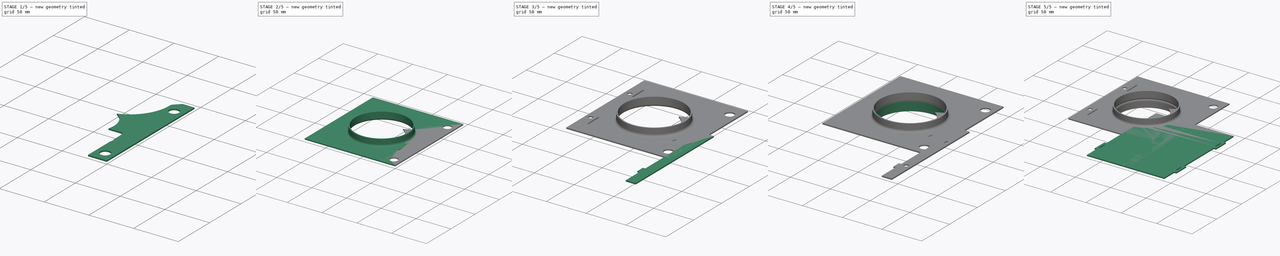
[diagram: build sequence overview — one tinted view per stage of 5, left to right]
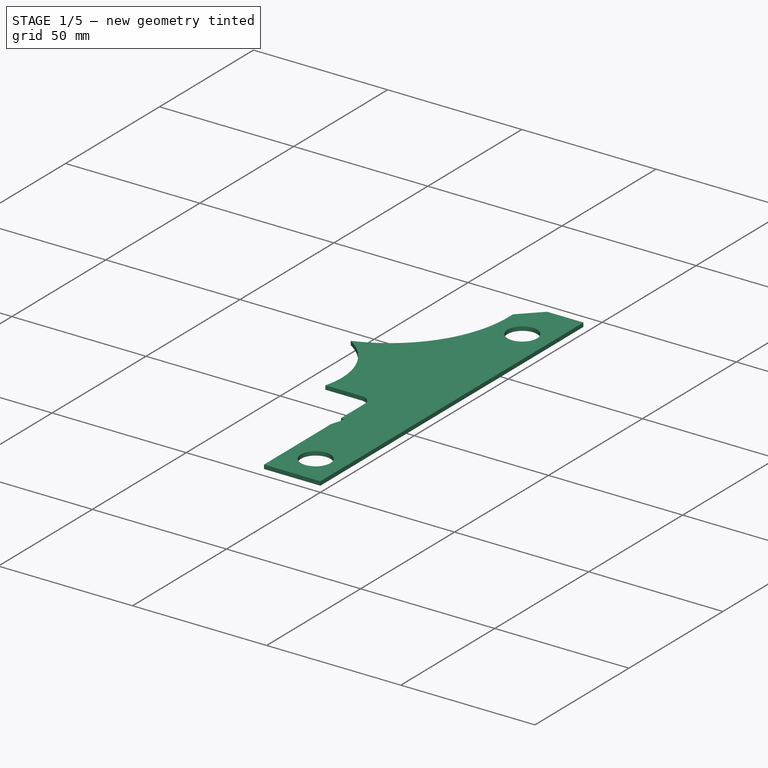
[diagram: stage 1 of 5 — iso view after this stage's code; geometry added in this stage tinted green]
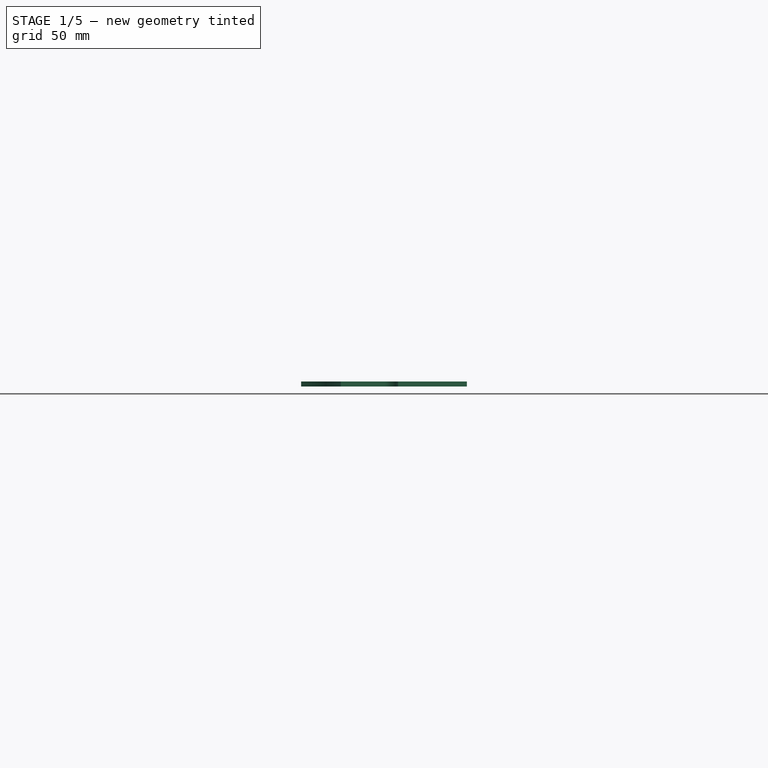
[diagram: stage 1 of 5 — front view after this stage's code; geometry added in this stage tinted green]
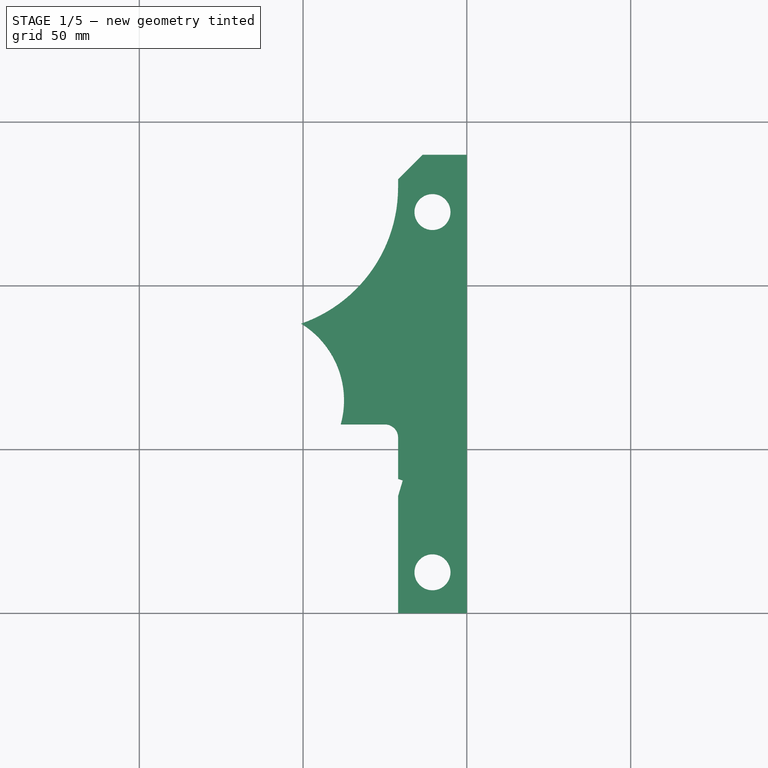
[diagram: stage 1 of 5 — top view after this stage's code; geometry added in this stage tinted green]
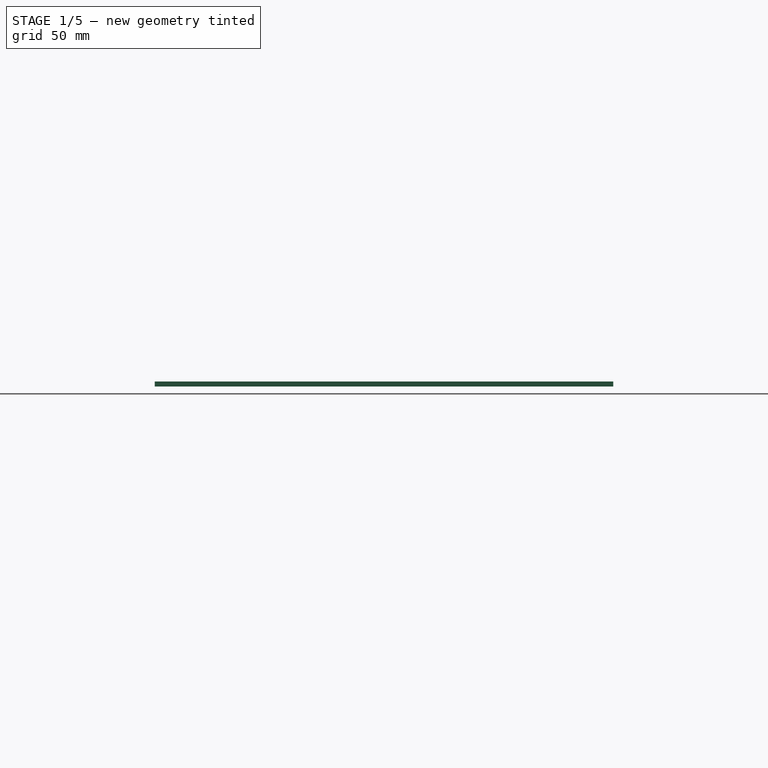
[diagram: stage 1 of 5 — right view after this stage's code; geometry added in this stage tinted green]
FCSTD DOCUMENT  (FreeCAD 0.19R)
Label: recicladora_piezas_fijas
License: Creative Commons Attribution-ShareAlike
LicenseURL: http://creativecommons.org/licenses/by-sa/4.0/
objects: PartDesign::CoordinateSystem×14, Sketcher::SketchObject×13, PartDesign::Pad×8, PartDesign::Body×6, PartDesign::Fillet×4, PartDesign::Hole×3, PartDesign::Pocket×2, PartDesign::Chamfer×2, App::FeaturePython×1, PartDesign::Line×1
note: 72 computed .brp shape members not serialized (recipe doc carries the construction recipe); baked Part::Feature solids carry a one-line shape summary decoded from their .brp

FEATURE [App::FeaturePython] dd  # WARN: FeaturePython — macro-defined, semantics opaque (R4)
  DynamicData = Created with DynamicData (v2.46) workbench. | This is a simple container object built | for holding custom properties.
  ddAlturaEjeCentral = 65
  ddAlturaHueco = 12.5
  ddAlturaPlaca = 140
  ddAlturaSuperiorNotch = 41
  ddAnchoBarra = 21
  ddAnchoHexagono = 31.22
  ddAnchuraEjeCentral = 65
  ddDiametroEntrada = 88
  ddDiametroHollo = 11
  ddDiametroMayor = 100
  ddDiametroSeparador = 55
  ddDistanciaHollos = 110
  ddGrosorPlaca = 1.5
  ddMargen = 1
  ddNotchHeight = 20
FEATURE [Sketcher::SketchObject] Sketch001
  FullyConstrained = true
  MapMode = 5
  Support = -> [XY_Plane]
  expr: Constraints[39] = dd.ddDiametroSeparador
  expr: Constraints[37] = dd.ddAlturaEjeCentral
  expr: Constraints[36] = dd.ddAnchuraEjeCentral
  expr: Constraints[38] = dd.ddAlturaEjeCentral
  expr: Constraints[32] = dd.ddAlturaSuperiorNotch
  expr: Constraints[29] = dd.ddGrosorPlaca
  expr: Constraints[26] = dd.ddDiametroHollo
  expr: Constraints[24] = dd.ddDistanciaHollos
  expr: Constraints[19] = dd.ddDiametroEntrada
  expr: Constraints[27] = dd.ddAlturaHueco
  expr: Constraints[17] = dd.ddAlturaPlaca
  expr: Constraints[14] = dd.ddAnchoBarra
  sketch-geometry (16):
    g0: LineSegment StartX=0 StartY=140 StartZ=0 EndX=-21 EndY=140 EndZ=0
    g1: LineSegment StartX=-21 StartY=140 StartZ=0 EndX=-21 EndY=130 EndZ=0
    g2: ArcOfCircle CenterX=-65 CenterY=130 CenterZ=0 NormalX=0 NormalY=0 NormalZ=1 AngleXU=0 Radius=44 StartAngle=5.04594 EndAngle=6.28319
    g3: ArcOfCircle CenterX=-25 CenterY=53.6515 CenterZ=0 NormalX=0 NormalY=0 NormalZ=1 AngleXU=0 Radius=4 StartAngle=6e-16 EndAngle=1.5708
    g4: LineSegment StartX=-21 StartY=53.6515 StartZ=0 EndX=-21 EndY=41 EndZ=0
    g5: LineSegment StartX=-21 StartY=41 StartZ=0 EndX=-19.5633 EndY=40.569 EndZ=0
    g6: LineSegment StartX=-19.5633 StartY=40.569 StartZ=0 EndX=-21 EndY=35.7798 EndZ=0
    g7: LineSegment StartX=-21 StartY=35.7798 StartZ=0 EndX=-21 EndY=0 EndZ=0
    g8: LineSegment StartX=-21 StartY=0 StartZ=0 EndX=0 EndY=0 EndZ=0
    g9: LineSegment StartX=0 StartY=0 StartZ=0 EndX=0 EndY=140 EndZ=0
    g10: Circle CenterX=-10.5 CenterY=12.5 CenterZ=0 NormalX=0 NormalY=0 NormalZ=-1 AngleXU=0 Radius=5.5
    g11: Circle CenterX=-10.5 CenterY=122.5 CenterZ=0 NormalX=0 NormalY=0 NormalZ=-1 AngleXU=0 Radius=5.5
    g12: GeomPoint X=-10.5 Y=0 Z=0
    g13: ArcOfCircle CenterX=-65 CenterY=65 CenterZ=0 NormalX=0 NormalY=0 NormalZ=1 AngleXU=0 Radius=27.5 StartAngle=6.01268 EndAngle=7.30263
    g14: LineSegment StartX=-25 StartY=57.6515 StartZ=0 EndX=-38.5 EndY=57.6515 EndZ=0
    g15: LineSegment StartX=-37.5 StartY=65 StartZ=0 EndX=-37.5 EndY=57.6515 EndZ=0
  constraints (45):
    c: Coincident(g7,g8)
    c: Coincident(g8,g9)
    c: Coincident(g0,g9)
    c: Coincident(g0,g1)
    c: Coincident(g4,g5)
    c: Coincident(g5,g6)
    c: Coincident(g6,g7)
    c: Vertical(g9)
    c: Vertical(g7)
    c: Vertical(g4)
    c: Vertical(g1)
    c: Horizontal(g0)
    c: Tangent(g3,g4) = 1.5708
    c: Tangent(g1,g2) = 1.5708
    c: DistanceX(g8,g8) = 21
    c: Symmetric(g7,g8,g12)
    c: Vertical(g12,g10)
    c: DistanceY(g9,g9) = 140
    c: Radius(g3) = 4
    c: Diameter(g2) = 88
    c: Vertical(g10,g11)
    c: Vertical(g6,g4)
    c: Horizontal(g8)
    c: Coincident(g8,g-1)
    c: DistanceY(g10,g11) = 110
    c: Equal(g11,g10)
    c: Diameter(g11) = 11
    c: DistanceY(g8,g10) = 12.5
    c: Angle(g5,g6) = 1.5708
    c: Distance(g5) = 1.5
    c: Vertical(g1,g7)
    c: Distance(g6) = 5
    c: DistanceY(g-1,g4) = 41
    c: Coincident(g2,g13)
    c: Horizontal(g14)
    c: Coincident(g13,g14)
    c: DistanceX(g13,g-1) = 65
    c: DistanceY(g-1,g13) = 65
    c: DistanceY(g13,g2) = 65
    c: Diameter(g13) = 55
    c: Tangent(g3,g14) = -1.5708
    c: Vertical(g15)
    c: DistanceX(g13,g15) = 1
    c: Horizontal(g15,g13)
    c: Tangent(g15,g13) = 1.5708
FEATURE [Sketcher::SketchObject] Sketch002
  FullyConstrained = true
  MapMode = 5
  Support = -> [XY_Plane002]
  expr: Constraints[36] = dd.ddAlturaEjeCentral
  expr: Constraints[29] = dd.ddAlturaSuperiorNotch
  expr: Constraints[24] = dd.ddGrosorPlaca
  expr: Constraints[30] = dd.ddAnchoBarra
  expr: Constraints[28] = dd.ddAnchuraEjeCentral
  expr: Constraints[25] = dd.ddAlturaEjeCentral
  expr: Constraints[21] = dd.ddDiametroHollo
  expr: Constraints[19] = dd.ddDistanciaHollos
  expr: Constraints[22] = dd.ddAlturaHueco
  expr: Constraints[14] = dd.ddAlturaPlaca
  sketch-geometry (12):
    g0: LineSegment StartX=0 StartY=140 StartZ=0 EndX=-21 EndY=140 EndZ=0
    g1: LineSegment StartX=-21 StartY=140 StartZ=0 EndX=-21 EndY=130 EndZ=0
    g2: ArcOfCircle CenterX=-65 CenterY=130 CenterZ=0 NormalX=0 NormalY=0 NormalZ=1 AngleXU=0 Radius=44 StartAngle=5.59137 EndAngle=6.28319
    g3: ArcOfCircle CenterX=-65 CenterY=65 CenterZ=0 NormalX=0 NormalY=0 NormalZ=1 AngleXU=0 Radius=50.1199 StartAngle=5.78384 EndAngle=7.11158
    g4: LineSegment StartX=-21 StartY=41 StartZ=0 EndX=-19.5633 EndY=40.569 EndZ=0
    g5: LineSegment StartX=-19.5633 StartY=40.569 StartZ=0 EndX=-21 EndY=35.7798 EndZ=0
    g6: LineSegment StartX=-21 StartY=35.7798 StartZ=0 EndX=-21 EndY=0 EndZ=0
    g7: LineSegment StartX=-21 StartY=0 StartZ=0 EndX=0 EndY=0 EndZ=0
    g8: LineSegment StartX=0 StartY=0 StartZ=0 EndX=0 EndY=140 EndZ=0
    g9: Circle CenterX=-10.5 CenterY=12.5 CenterZ=0 NormalX=0 NormalY=0 NormalZ=-1 AngleXU=0 Radius=5.5
    g10: Circle CenterX=-10.5 CenterY=122.5 CenterZ=0 NormalX=0 NormalY=0 NormalZ=-1 AngleXU=0 Radius=5.5
    g11: GeomPoint X=-10.5 Y=0 Z=0
  constraints (39):
    c: Coincident(g6,g7)
    c: Coincident(g7,g8)
    c: Coincident(g0,g8)
    c: Coincident(g0,g1)
    c: Coincident(g2,g3)
    c: Coincident(g4,g5)
    c: Coincident(g5,g6)
    c: Vertical(g8)
    c: Vertical(g6)
    c: Vertical(g1)
    c: Horizontal(g0)
    c: Tangent(g1,g2) = 1.5708
    c: Symmetric(g6,g7,g11)
    c: Vertical(g11,g9)
    c: DistanceY(g8,g8) = 140
    c: Vertical(g9,g10)
    c: Vertical(g5,g4)
    c: Horizontal(g7)
    c: Coincident(g7,g-1)
    c: DistanceY(g9,g10) = 110
    c: Equal(g10,g9)
    c: Diameter(g10) = 11
    c: DistanceY(g7,g9) = 12.5
    c: Angle(g4,g5) = 1.5708
    c: Distance(g4) = 1.5
    c: DistanceY(g3) = 65
    c: Coincident(g3,g4)
    c: Distance(g5) = 5
    c: DistanceX(g3,g7) = 65
    c: DistanceY(g-1,g3) = 41
    c: DistanceX(g7,g7) = 21
    c: Diameter(g3) = 100.24
    c: DistanceX(g0,g0) = 21
    c: Vertical(g1,g3)
    c: Vertical(g2,g3)
    c: Diameter(g2) = 88
    c: DistanceY(g3,g2) = 65
    c: DistanceY(g1,g1) = 10
    c: DistanceY(g10,g0) = 17.5
FEATURE [PartDesign::Pad] Pad002
  Direction = (0,0,1)
  Length = 1.5
  Length2 = 10
  Profile = -> Sketch002
  Type = 0
  expr: Length = dd.ddGrosorPlaca
FEATURE [PartDesign::Pad] Pad
  Direction = (0,0,1)
  Length = 1.5
  Length2 = 10
  Profile = -> Sketch001
  Type = 0
  expr: Length = dd.ddGrosorPlaca
FEATURE [PartDesign::CoordinateSystem] LCS_Placa_union_salida
  AttacherType = Attacher::AttachEngine3D
  MapMode = 11
  Placement = pos=(-123.75,35,0) rot=(0.707107,-0.707107,0;3.14159rad)
  Support = -> [Hole002]
FEATURE [PartDesign::CoordinateSystem] LCS_Placa_Union_Entrada
  AttacherType = Attacher::AttachEngine3D
  MapMode = 11
  Placement = pos=(0,-35,0) rot=(0,0,1;1.5708rad)
  Support = -> [Hole]
FEATURE [PartDesign::CoordinateSystem] LCS_Placa_union_salida001
  AttacherType = Attacher::AttachEngine3D
  MapMode = 11
  Placement = pos=(-123.75,35,1.5) rot=(0.707107,-0.707107,0;3.14159rad)
  Support = -> [Hole001]
FEATURE [PartDesign::Body] CuchillaFija001  label="PlacaCaja"
  Group = -> [Sketch003,Pad003,LCS_eje_central002,LCS_placa_caja_salida,Sketch,Pad004,Fillet,Fillet001,Sketch007,Pocket001,LCS_Placa_Salida_Fondo,Sketch011,Hole001,LCS_Placa_union_salida001]
  Origin = -> Origin003
  Tip = -> Hole001
FEATURE [PartDesign::CoordinateSystem] LCS_Paca_union_entrada_2
  AttacherType = Attacher::AttachEngine3D
  MapMode = 11
  Placement = pos=(0,-35,1.5) rot=(0.707107,-0.707107,0;3.14159rad)
  Support = -> [Hole]
FEATURE [PartDesign::Body] Body002  label="Placa_union"
  Group = -> [Sketch009,Pad008,Sketch010,Hole,LCS_Placa_Union_Entrada,LCS_Paca_union_entrada_2]
  Origin = -> Origin006
  Tip = -> Hole
FEATURE [PartDesign::Line] HoleAxis_1
  AttacherType = Attacher::AttachEngineLine
  Length = 7.74987
  MapMode = 19
  Placement = pos=(-123.75,35,1.5) rot=(0,0,1;0rad)
  ResizeMode = 1
  Support = -> [Hole002]
FEATURE [PartDesign::Body] CuchillaFija002  label="PlacaCajaSalida"
  Group = -> [Sketch005,Pad005,LCS_eje_central003,LCS_placa_caja_salida001,Sketch004,Pad006,Fillet002,Fillet003,Sketch006,Pocket,Sketch012,Hole002,LCS_Placa_union_salida,HoleAxis_1]
  Origin = -> Origin004
  Tip = -> Hole002
FEATURE [PartDesign::Chamfer] Chamfer
  Angle = 45
  Base = -> Pad [Edge20]
  BaseFeature = -> Pad
  ChamferType = 0
  FlipDirection = false
  Size = 7.5
  Size2 = 1
  SupportTransform = false
FEATURE [PartDesign::Body] Body  label="CuchillaFijaSeparador"
  Group = -> [Sketch001,Pad,LCS_eje_central,LCS_cuchilla_fija_separador_salida,Chamfer]
  Origin = -> Origin
  Tip = -> Chamfer
FEATURE [PartDesign::Chamfer] Chamfer001
  Angle = 45
  Base = -> Pad002 [Edge2]
  BaseFeature = -> Pad002
  ChamferType = 0
  FlipDirection = false
  Size = 7.5
  Size2 = 1
  SupportTransform = false
FEATURE [PartDesign::Body] CuchillaFija
  Group = -> [Sketch002,Pad002,LCS_eje_central001,LCS_cuchilla_fija_salida,Chamfer001]
  Origin = -> Origin002
  Tip = -> Chamfer001
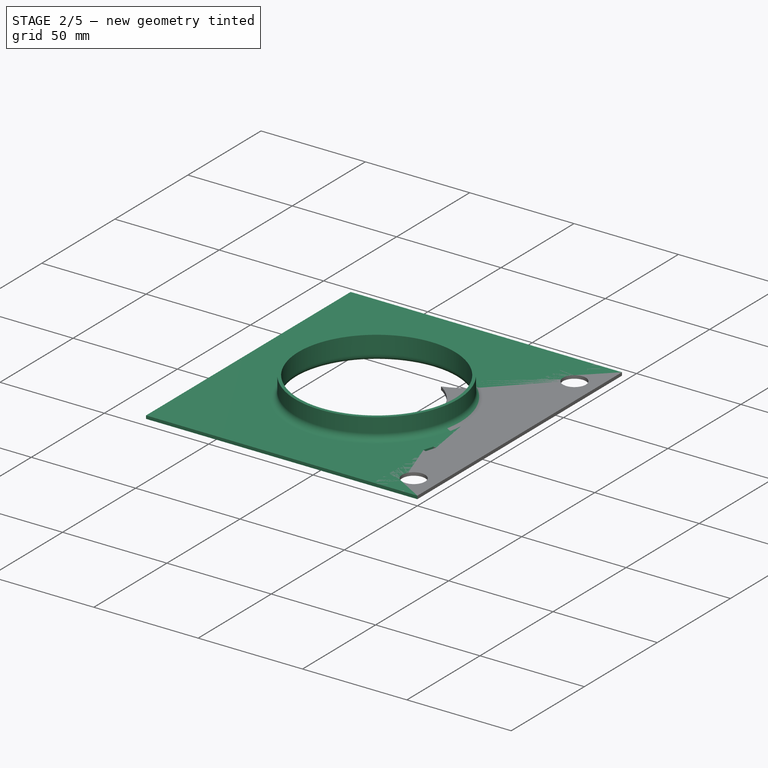
[diagram: stage 2 of 5 — iso view after this stage's code; geometry added in this stage tinted green]
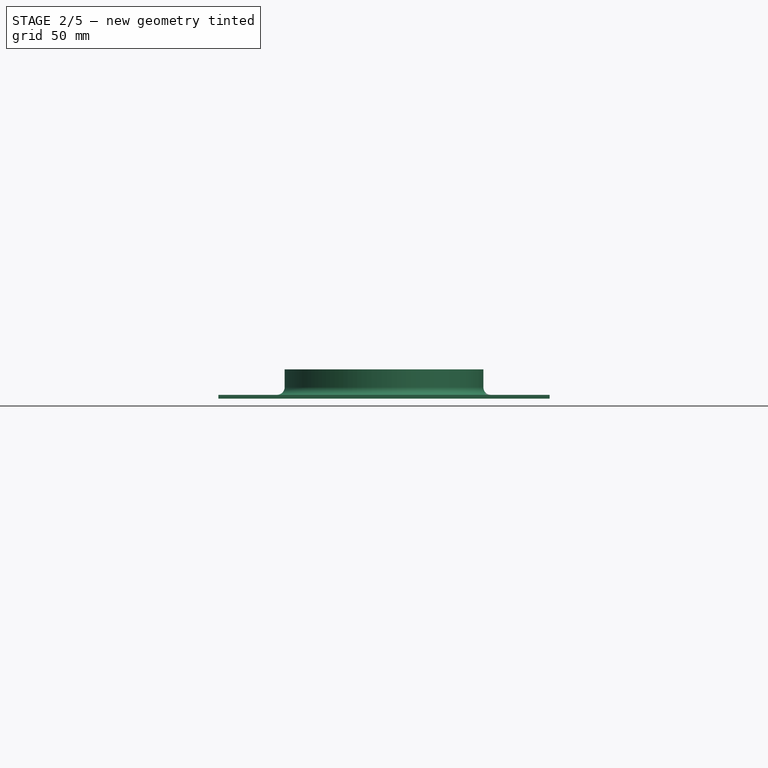
[diagram: stage 2 of 5 — front view after this stage's code; geometry added in this stage tinted green]
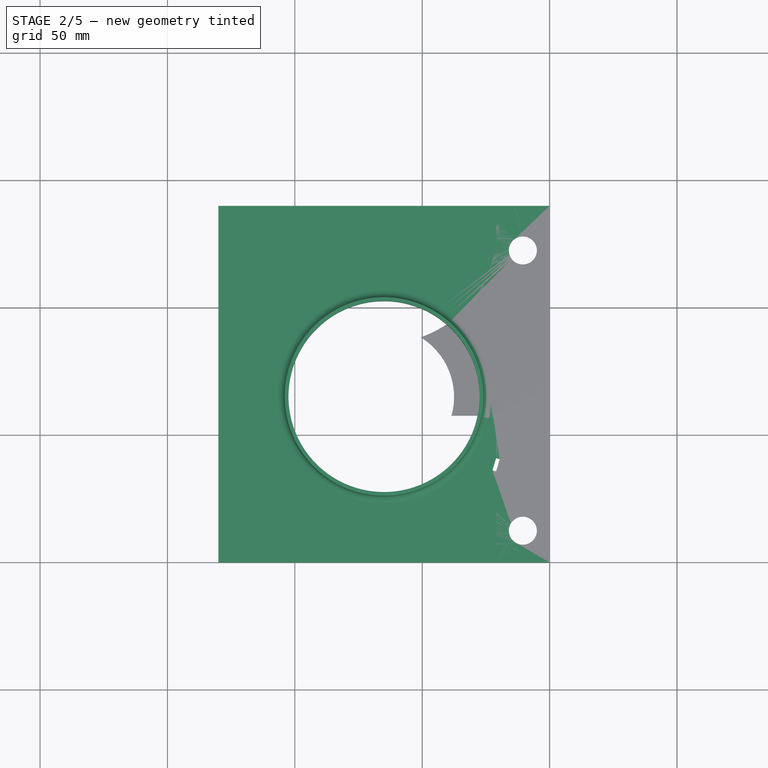
[diagram: stage 2 of 5 — top view after this stage's code; geometry added in this stage tinted green]
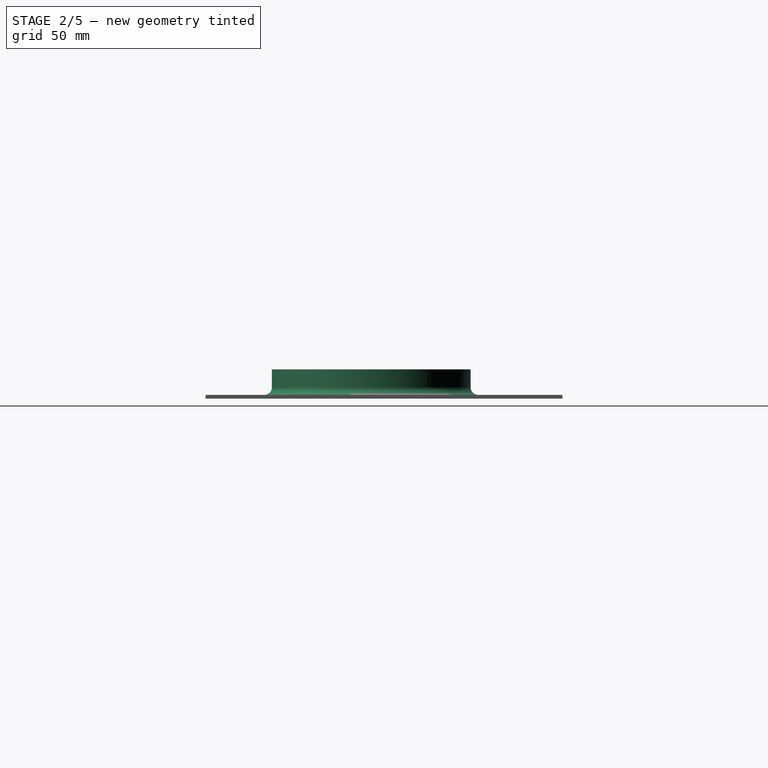
[diagram: stage 2 of 5 — right view after this stage's code; geometry added in this stage tinted green]
FEATURE [PartDesign::CoordinateSystem] LCS_eje_central003  label="LCS_placa_caja_entrada001"
  AttacherType = Attacher::AttachEngine3D
  AttachmentOffset = pos=(-65,65,0) rot=(0,0,1;0rad)
  MapMode = 5
  Placement = pos=(-65,65,0) rot=(0,0,1;0rad)
  Support = -> [XY_Plane004]
  expr: .AttachmentOffset.Base.y = dd.ddAlturaEjeCentral
  expr: .AttachmentOffset.Base.x = -dd.ddAnchuraEjeCentral
FEATURE [Sketcher::SketchObject] Sketch005
  FullyConstrained = true
  MapMode = 5
  Support = -> [XY_Plane004]
  expr: Constraints[21] = 75
  expr: Constraints[19] = dd.ddAnchuraEjeCentral
  expr: Constraints[18] = dd.ddAnchoBarra / 2
  expr: Constraints[17] = dd.ddAlturaSuperiorNotch
  expr: Constraints[33] = dd.ddAnchoBarra
  expr: Constraints[20] = dd.ddAlturaEjeCentral
  expr: Constraints[15] = dd.ddGrosorPlaca
  expr: Constraints[13] = dd.ddAlturaHueco
  expr: Constraints[12] = dd.ddDiametroHollo
  expr: Constraints[5] = dd.ddAlturaPlaca
  expr: Constraints[10] = dd.ddDistanciaHollos
  sketch-geometry (12):
    g0: LineSegment StartX=0 StartY=140 StartZ=0 EndX=-130 EndY=140 EndZ=0
    g1: LineSegment StartX=-21 StartY=41 StartZ=0 EndX=-19.5633 EndY=40.569 EndZ=0
    g2: LineSegment StartX=-19.5633 StartY=40.569 StartZ=0 EndX=-21 EndY=35.7798 EndZ=0
    g3: LineSegment StartX=-130 StartY=0 StartZ=0 EndX=0 EndY=0 EndZ=0
    g4: LineSegment StartX=0 StartY=0 StartZ=0 EndX=0 EndY=140 EndZ=0
    g5: Circle CenterX=-10.5 CenterY=12.5 CenterZ=0 NormalX=0 NormalY=0 NormalZ=-1 AngleXU=0 Radius=5.5
    g6: Circle CenterX=-10.5 CenterY=122.5 CenterZ=0 NormalX=0 NormalY=0 NormalZ=-1 AngleXU=0 Radius=5.5
    g7: Circle CenterX=-65 CenterY=65 CenterZ=0 NormalX=0 NormalY=0 NormalZ=1 AngleXU=0 Radius=37.5
    g8: LineSegment StartX=-130 StartY=140 StartZ=0 EndX=-130 EndY=0 EndZ=0
    g9: Circle CenterX=-65 CenterY=65 CenterZ=0 NormalX=0 NormalY=0 NormalZ=1 AngleXU=0 Radius=50
    g10: LineSegment StartX=-21 StartY=41 StartZ=0 EndX=-22.4367 EndY=36.2109 EndZ=0
    g11: LineSegment StartX=-22.4367 StartY=36.2109 StartZ=0 EndX=-21 EndY=35.7798 EndZ=0
  constraints (34):
    c: Coincident(g3,g4)
    c: Coincident(g0,g4)
    c: Coincident(g1,g2)
    c: Vertical(g4)
    c: Horizontal(g0)
    c: DistanceY(g4,g4) = 140
    c: Vertical(g5,g6)
    c: Vertical(g2,g1)
    c: Horizontal(g3)
    c: Coincident(g3,g-1)
    c: DistanceY(g5,g6) = 110
    c: Equal(g6,g5)
    c: Diameter(g6) = 11
    c: DistanceY(g3,g5) = 12.5
    c: Angle(g1,g2) = 1.5708
    c: Distance(g1) = 1.5
    c: Distance(g2) = 5
    c: DistanceY(g-1,g1) = 41
    c: DistanceX(g5,g3) = 10.5
    c: DistanceX(g7,g3) = 65
    c: DistanceY(g-1,g7) = 65
    c: Diameter(g7) = 75
    c: Coincident(g0,g8)
    c: Coincident(g3,g8)
    c: Vertical(g8)
    c: Diameter(g9) = 100
    c: Coincident(g7,g9)
    c: DistanceX(g0,g0) = 130
    c: Equal(g11,g1)
    c: Equal(g10,g2)
    c: Coincident(g2,g11)
    c: Coincident(g10,g11)
    c: Coincident(g1,g10)
    c: DistanceX(g2,g-1) = 21
FEATURE [PartDesign::Pad] Pad005
  Direction = (0,0,1)
  Length = 1.5
  Length2 = 10
  Profile = -> Sketch005
  Type = 0
  expr: Length = dd.ddGrosorPlaca
FEATURE [PartDesign::CoordinateSystem] LCS_placa_caja_salida001
  AttacherType = Attacher::AttachEngine3D
  AttachmentOffset = pos=(0,0,0) rot=(0,0,-1;1.5708rad)
  MapMode = 11
  Placement = pos=(-65,65,1.5) rot=(0,0,1;0rad)
  Support = -> [Pad005]
FEATURE [Sketcher::SketchObject] Sketch004
  ExternalGeometry = -> [Pad005]
  FullyConstrained = true
  MapMode = 5
  Placement = pos=(0,0,1.5) rot=(0,0,1;0rad)
  Support = -> [Pad005]
  expr: Constraints[6] = dd.ddGrosorPlaca
  sketch-geometry (3):
    g0: Circle CenterX=-65 CenterY=65 CenterZ=0 NormalX=0 NormalY=0 NormalZ=1 AngleXU=0 Radius=37.5
    g1: Circle CenterX=-65 CenterY=65 CenterZ=0 NormalX=0 NormalY=0 NormalZ=1 AngleXU=0 Radius=39
    g2: LineSegment StartX=-27.5 StartY=65 StartZ=0 EndX=-26 EndY=65 EndZ=0
  constraints (8):
    c: Coincident(g0,g-3)
    c: Coincident(g1,g0)
    c: Equal(g0,g-3)
    c: PointOnObject(g2,g0)
    c: PointOnObject(g2,g1)
    c: Horizontal(g2)
    c: DistanceX(g2,g2) = 1.5
    c: Horizontal(g2,g0)
FEATURE [PartDesign::Pad] Pad006
  BaseFeature = -> Pad005
  Direction = (0,0,1)
  Length = 10
  Length2 = 10
  Profile = -> Sketch004
  Type = 0
FEATURE [PartDesign::Fillet] Fillet002
  Base = -> Pad006 [Edge12]
  BaseFeature = -> Pad006
  Radius = 3
  SupportTransform = false
FEATURE [PartDesign::Fillet] Fillet003
  Base = -> Fillet002 [Edge36]
  BaseFeature = -> Fillet002
  Radius = 3
  SupportTransform = false
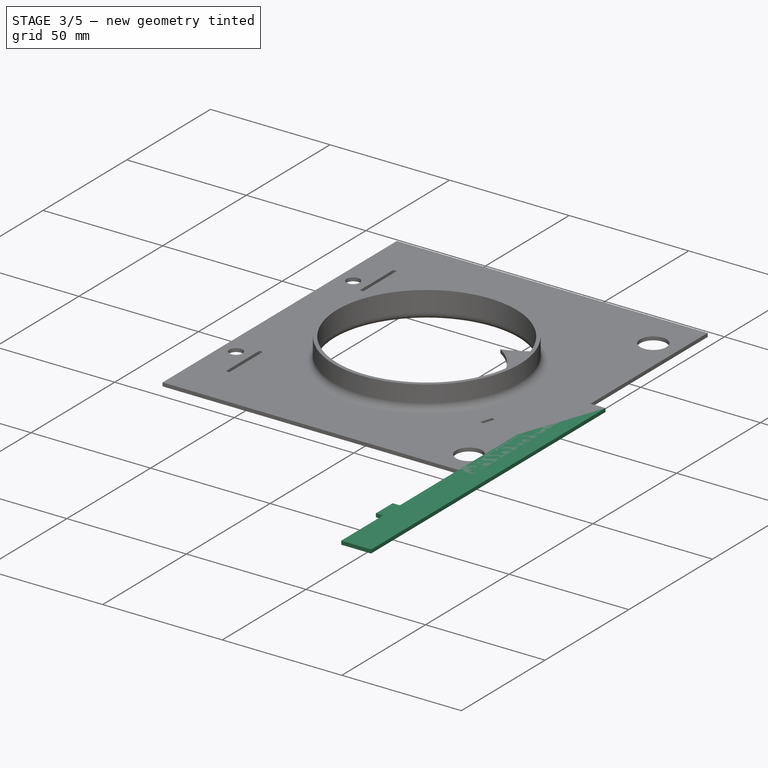
[diagram: stage 3 of 5 — iso view after this stage's code; geometry added in this stage tinted green]
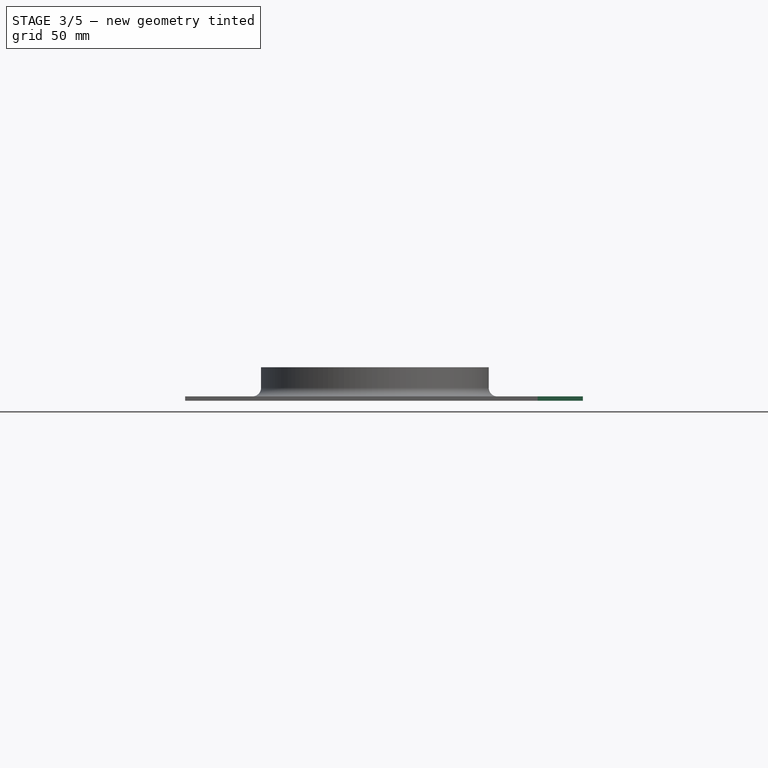
[diagram: stage 3 of 5 — front view after this stage's code; geometry added in this stage tinted green]
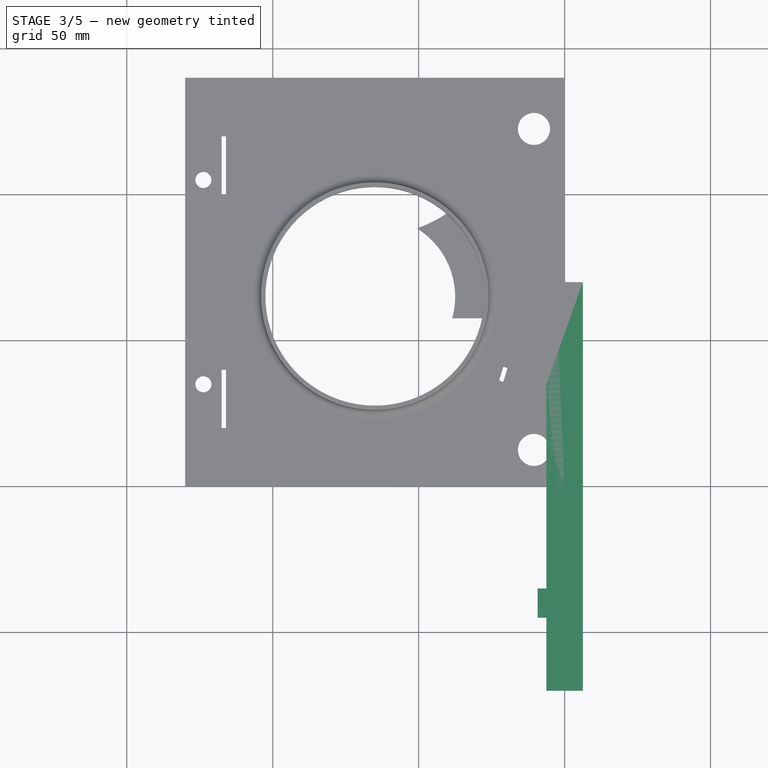
[diagram: stage 3 of 5 — top view after this stage's code; geometry added in this stage tinted green]
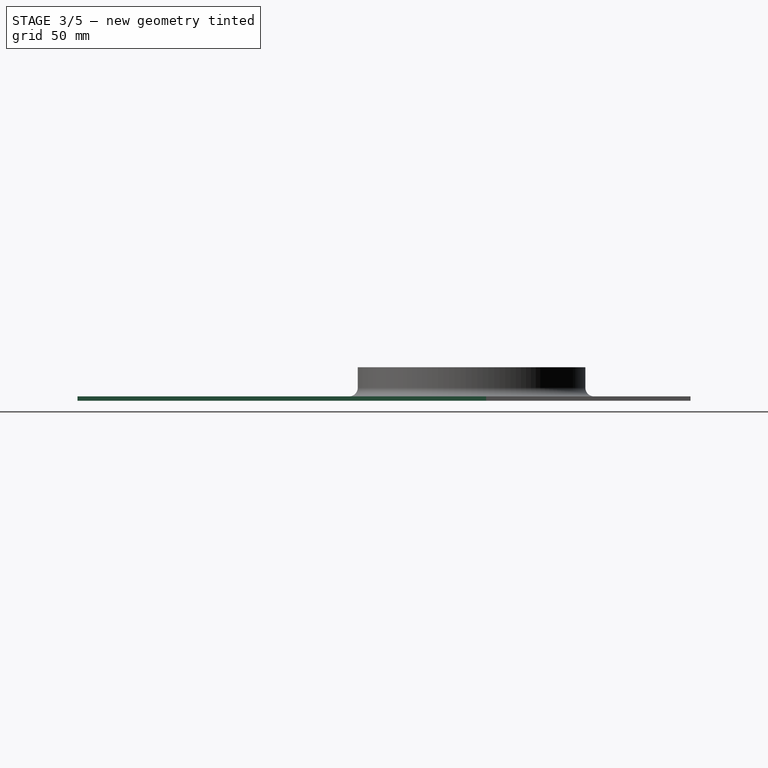
[diagram: stage 3 of 5 — right view after this stage's code; geometry added in this stage tinted green]
FEATURE [Sketcher::SketchObject] Sketch006
  ExternalGeometry = -> [Fillet003]
  FullyConstrained = true
  MapMode = 5
  Placement = pos=(0,0,1.5) rot=(0,0,1;0rad)
  Support = -> [Fillet003]
  expr: Constraints[33] = dd.ddNotchHeight
  expr: Constraints[19] = dd.ddGrosorPlaca
  expr: Constraints[18] = dd.ddNotchHeight
  sketch-geometry (14):
    g0: LineSegment StartX=-117.5 StartY=120 StartZ=0 EndX=-116 EndY=120 EndZ=0
    g1: LineSegment StartX=-116 StartY=120 StartZ=0 EndX=-116 EndY=100 EndZ=0
    g2: LineSegment StartX=-116 StartY=100 StartZ=0 EndX=-117.5 EndY=100 EndZ=0
    g3: LineSegment StartX=-117.5 StartY=100 StartZ=0 EndX=-117.5 EndY=120 EndZ=0
    g4: LineSegment StartX=-117.5 StartY=40 StartZ=0 EndX=-116 EndY=40 EndZ=0
    g5: LineSegment StartX=-116 StartY=40 StartZ=0 EndX=-116 EndY=20 EndZ=0
    g6: LineSegment StartX=-116 StartY=20 StartZ=0 EndX=-117.5 EndY=20 EndZ=0
    g7: LineSegment StartX=-117.5 StartY=20 StartZ=0 EndX=-117.5 EndY=40 EndZ=0
    g8: GeomPoint X=-116 Y=30 Z=0
    g9: GeomPoint X=-116 Y=110 Z=0
    g10: LineSegment StartX=-65 StartY=65 StartZ=0 EndX=-116 EndY=65 EndZ=0
    g11: GeomPoint X=-130 Y=0 Z=0
    g12: GeomPoint X=-130 Y=70 Z=0
    g13: LineSegment StartX=-130 StartY=70 StartZ=0 EndX=0 EndY=70 EndZ=0
  constraints (34):
    c: Coincident(g0,g1)
    c: Coincident(g1,g2)
    c: Coincident(g2,g3)
    c: Coincident(g3,g0)
    c: Horizontal(g0)
    c: Horizontal(g2)
    c: Vertical(g1)
    c: Vertical(g3)
    c: Coincident(g4,g5)
    c: Coincident(g5,g6)
    c: Coincident(g6,g7)
    c: Coincident(g7,g4)
    c: Horizontal(g4)
    c: Horizontal(g6)
    c: Vertical(g5)
    c: Vertical(g7)
    c: Equal(g1,g5)
    c: Equal(g2,g4)
    c: DistanceY(g3,g3) = 20
    c: DistanceX(g0,g0) = 1.5
    c: Vertical(g2,g4)
    c: Symmetric(g4,g5,g8)
    c: Symmetric(g1,g0,g9)
    c: Coincident(g10,g-6)
    c: Horizontal(g10)
    c: DistanceX(g10,g10) = 51
    c: Vertical(g1,g10)
    c: PointOnObject(g11,g-1)
    c: Vertical(g-3,g12)
    c: Symmetric(g-3,g11,g12)
    c: Coincident(g13,g12)
    c: PointOnObject(g13,g-2)
    c: Symmetric(g4,g1,g13)
    c: DistanceY(g-1,g6) = 20
FEATURE [PartDesign::Pocket] Pocket
  BaseFeature = -> Fillet003
  Length = 5
  Length2 = 5
  Profile = -> Sketch006
  Type = 2
FEATURE [PartDesign::CoordinateSystem] LCS_Placa_Fondo_Entrada
  AttacherType = Attacher::AttachEngine3D
  MapMode = 49
  Placement = pos=(-54.75,50,1.5) rot=(0.707107,0,-0.707107;3.14159rad)
  Support = -> [Pad007]
FEATURE [PartDesign::Body] Body001  label="PlacaFondo"
  Group = -> [Sketch008,Pad007,LCS_Placa_Fondo_Entrada]
  Origin = -> Origin005
  Tip = -> Pad007
FEATURE [PartDesign::CoordinateSystem] LCS_Placa_Salida_Fondo
  AttacherType = Attacher::AttachEngine3D
  MapMode = 49
  Placement = pos=(-117.5,120,1.5) rot=(1,0,0;3.14159rad)
  Support = -> [Pocket001]
FEATURE [Sketcher::SketchObject] Sketch009
  FullyConstrained = true
  MapMode = 5
  Support = -> [XY_Plane006]
  expr: Constraints[33] = dd.ddAlturaPlaca
  expr: Constraints[30] = dd.ddNotchHeight / 2
  expr: Constraints[32] = dd.ddNotchHeight * 1.5
  expr: Constraints[29] = dd.ddGrosorPlaca * 2
  sketch-geometry (13):
    g0: LineSegment StartX=-6.25 StartY=70 StartZ=0 EndX=6.25 EndY=70 EndZ=0
    g1: LineSegment StartX=6.25 StartY=70 StartZ=0 EndX=6.25 EndY=-70 EndZ=0
    g2: LineSegment StartX=6.25 StartY=-70 StartZ=0 EndX=-6.25 EndY=-70 EndZ=0
    g3: LineSegment StartX=-6.25 StartY=-70 StartZ=0 EndX=-6.25 EndY=-45 EndZ=0
    g4: LineSegment StartX=-6.25 StartY=-45 StartZ=0 EndX=-9.25 EndY=-45 EndZ=0
    g5: LineSegment StartX=-9.25 StartY=-45 StartZ=0 EndX=-9.25 EndY=-35 EndZ=0
    g6: LineSegment StartX=-9.25 StartY=-35 StartZ=0 EndX=-6.25 EndY=-35 EndZ=0
    g7: LineSegment StartX=-6.25 StartY=-35 StartZ=0 EndX=-6.25 EndY=35 EndZ=0
    g8: LineSegment StartX=-6.25 StartY=35 StartZ=0 EndX=-9.25 EndY=35 EndZ=0
    g9: LineSegment StartX=-9.25 StartY=35 StartZ=0 EndX=-9.25 EndY=45 EndZ=0
    g10: LineSegment StartX=-9.25 StartY=45 StartZ=0 EndX=-6.25 EndY=45 EndZ=0
    g11: LineSegment StartX=-6.25 StartY=45 StartZ=0 EndX=-6.25 EndY=70 EndZ=0
    g12: GeomPoint X=-6.25 Y=-40 Z=0
  constraints (36):
    c: Horizontal(g0)
    c: Coincident(g0,g1)
    c: Vertical(g1)
    c: Coincident(g1,g2)
    c: Horizontal(g2)
    c: Coincident(g2,g3)
    c: Coincident(g3,g4)
    c: Horizontal(g4)
    c: Coincident(g4,g5)
    c: Vertical(g5)
    c: Coincident(g5,g6)
    c: Horizontal(g6)
    c: Coincident(g6,g7)
    c: Vertical(g7)
    c: Coincident(g7,g8)
    c: Horizontal(g8)
    c: Coincident(g8,g9)
    c: Vertical(g9)
    c: Coincident(g9,g10)
    c: Horizontal(g10)
    c: Coincident(g10,g11)
    c: Coincident(g11,g0)
    c: Vertical(g11)
    c: Vertical(g7,g10)
    c: Vertical(g6,g3)
    c: Vertical(g3)
    c: Equal(g3,g11)
    c: Equal(g9,g5)
    c: Equal(g8,g6)
    c: DistanceX(g6,g6) = 3
    c: DistanceY(g5,g5) = 10
    c: Symmetric(g3,g6,g12)
    c: DistanceY(g2,g12) = 30
    c: DistanceY(g1,g1) = 140
    c: DistanceX(g0,g0) = 12.5
    c: Symmetric(g0,g1,g-1)
FEATURE [PartDesign::Pad] Pad008
  Direction = (0,0,1)
  Length = 1.5
  Length2 = 10
  Profile = -> Sketch009
  Type = 0
  expr: Length = dd.ddGrosorPlaca
FEATURE [Sketcher::SketchObject] Sketch012
  ExternalGeometry = -> [Pocket]
  FullyConstrained = true
  MapMode = 5
  Placement = pos=(0,0,1.5) rot=(0,0,1;0rad)
  Support = -> [Pocket]
  sketch-geometry (7):
    g0: Circle CenterX=-123.75 CenterY=105 CenterZ=0 NormalX=0 NormalY=0 NormalZ=1 AngleXU=0 Radius=2.5
    g1: Circle CenterX=-123.75 CenterY=35 CenterZ=0 NormalX=0 NormalY=0 NormalZ=1 AngleXU=0 Radius=2.5
    g2: GeomPoint X=-117.5 Y=0 Z=0
    g3: GeomPoint X=-123.75 Y=0 Z=0
    g4: GeomPoint X=-130 Y=70 Z=0
    g5: LineSegment StartX=-130 StartY=70 StartZ=0 EndX=0 EndY=70 EndZ=0
    g6: GeomPoint X=-123.75 Y=70 Z=0
  constraints (13):
    c: Equal(g1,g0)
    c: Diameter(g1) = 5
    c: PointOnObject(g2,g-1)
    c: Vertical(g2,g-3)
    c: Symmetric(g-4,g2,g3)
    c: Vertical(g1,g3)
    c: Vertical(g3,g0)
    c: Symmetric(g-4,g-4,g4)
    c: Coincident(g5,g4)
    c: PointOnObject(g5,g-2)
    c: Symmetric(g1,g0,g5)
    c: PointOnObject(g6,g5)
    c: Symmetric(g3,g6,g1)
FEATURE [PartDesign::Hole] Hole002
  BaseFeature = -> Pocket
  Depth = 386.619
  DepthType = 1
  Diameter = 5.5
  DrillForDepth = false
  DrillPoint = 1
  DrillPointAngle = 118
  HoleCutCountersinkAngle = 90
  HoleCutCustomValues = false
  HoleCutDepth = 0
  HoleCutDiameter = 6.1
  HoleCutType = 0
  ModelActualThread = false
  Profile = -> Sketch012
  Tapered = false
  TaperedAngle = 90
  ThreadAngle = 0
  ThreadClass = 0
  ThreadCutOffInner = 0
  ThreadCutOffOuter = 0
  ThreadDirection = 0
  ThreadFit = 0
  ThreadPitch = 0
  ThreadSize = 13
  ThreadType = 1
  Threaded = false
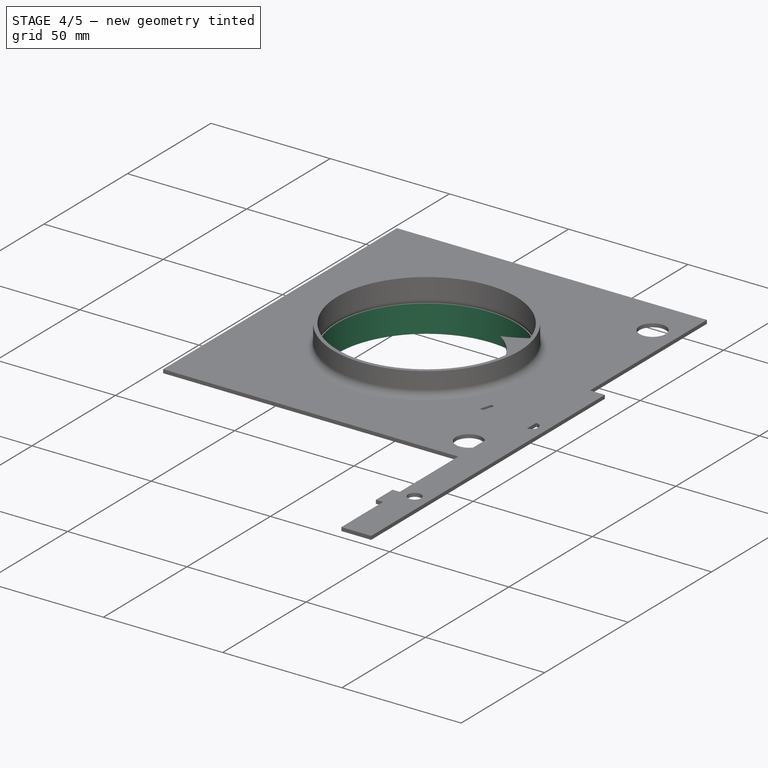
[diagram: stage 4 of 5 — iso view after this stage's code; geometry added in this stage tinted green]
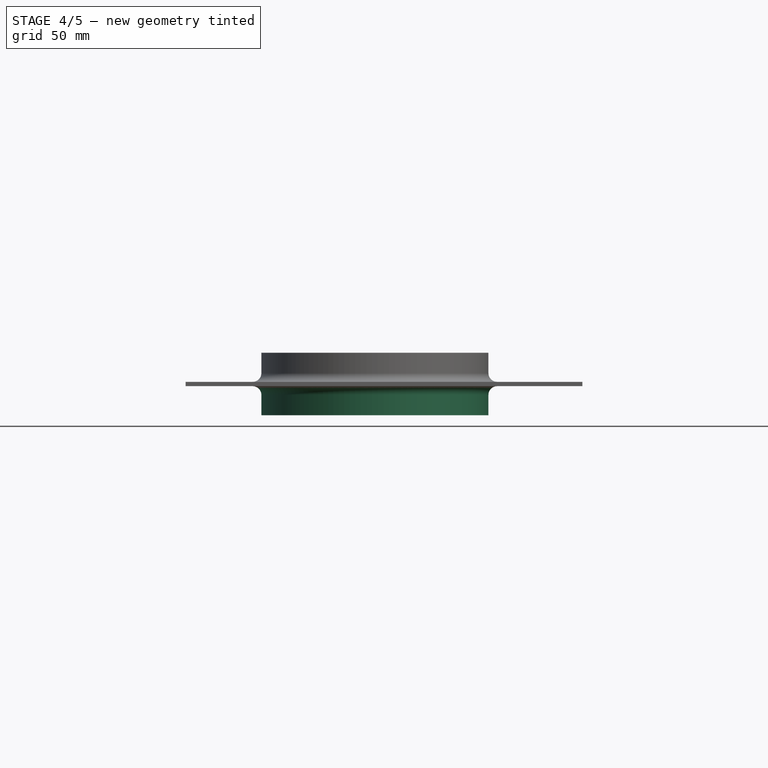
[diagram: stage 4 of 5 — front view after this stage's code; geometry added in this stage tinted green]
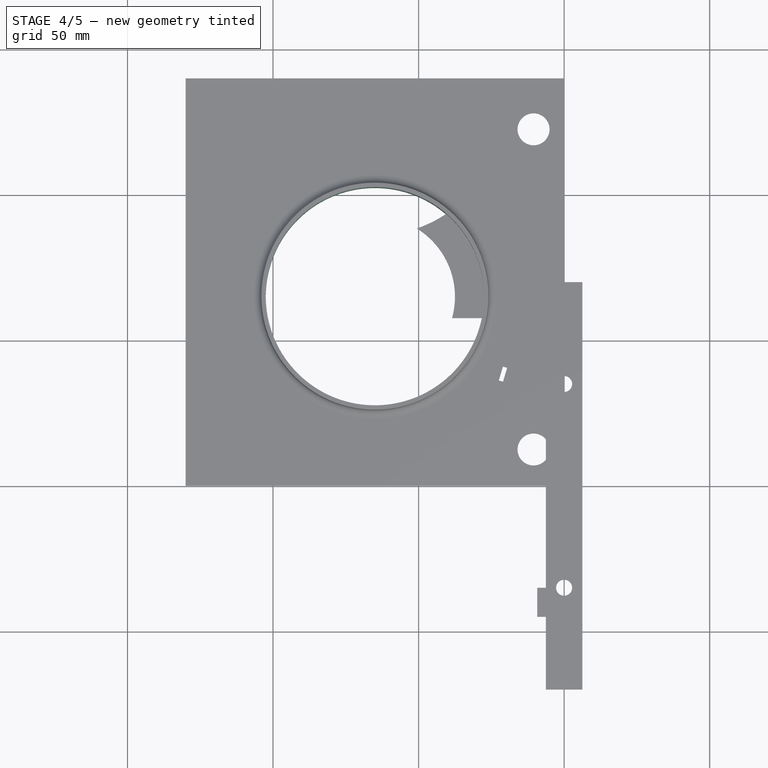
[diagram: stage 4 of 5 — top view after this stage's code; geometry added in this stage tinted green]
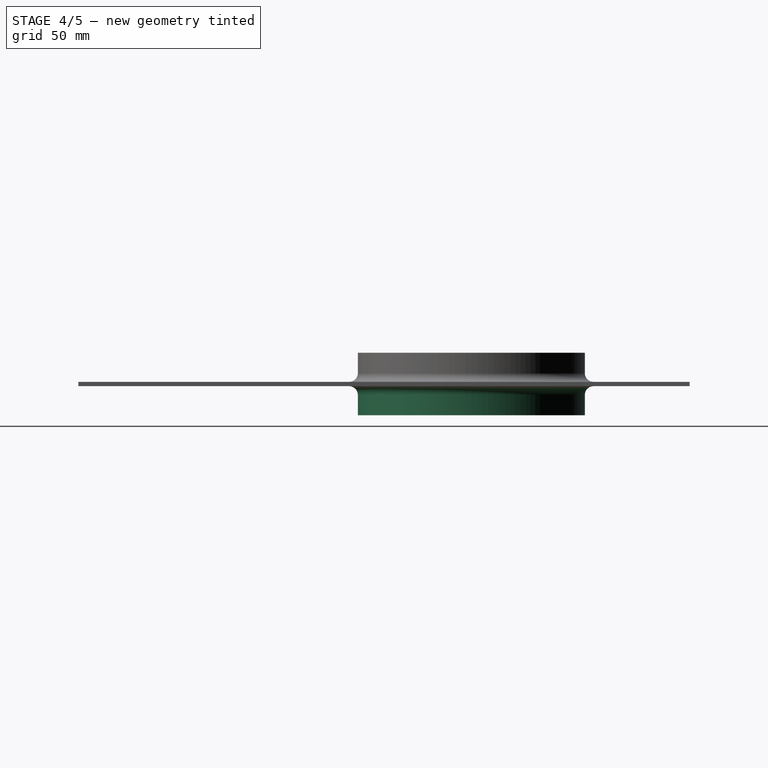
[diagram: stage 4 of 5 — right view after this stage's code; geometry added in this stage tinted green]
FEATURE [PartDesign::CoordinateSystem] LCS_eje_central  label="LCS_cucjilla_fija_separador_entrada"
  AttacherType = Attacher::AttachEngine3D
  AttachmentOffset = pos=(-65,65,0) rot=(0,0,1;0rad)
  MapMode = 5
  Placement = pos=(-65,65,0) rot=(0,0,1;0rad)
  Support = -> [XY_Plane]
  expr: .AttachmentOffset.Base.y = dd.ddAlturaEjeCentral
  expr: .AttachmentOffset.Base.x = -dd.ddAnchuraEjeCentral
FEATURE [PartDesign::CoordinateSystem] LCS_eje_central001  label="LCS_cuchilla_fija_entrada"
  AttacherType = Attacher::AttachEngine3D
  AttachmentOffset = pos=(-65,65,0) rot=(0,0,1;0rad)
  MapMode = 5
  Placement = pos=(-65,65,0) rot=(0,0,1;0rad)
  Support = -> [XY_Plane002]
  expr: .AttachmentOffset.Base.y = dd.ddAlturaEjeCentral
  expr: .AttachmentOffset.Base.x = -dd.ddAnchuraEjeCentral
FEATURE [PartDesign::CoordinateSystem] LCS_eje_central002  label="LCS_placa_caja_entrada"
  AttacherType = Attacher::AttachEngine3D
  AttachmentOffset = pos=(-65,65,0) rot=(0,0,1;0rad)
  MapMode = 5
  Placement = pos=(-65,65,0) rot=(0,0,1;0rad)
  Support = -> [XY_Plane003]
  expr: .AttachmentOffset.Base.y = dd.ddAlturaEjeCentral
  expr: .AttachmentOffset.Base.x = -dd.ddAnchuraEjeCentral
FEATURE [Sketcher::SketchObject] Sketch003
  FullyConstrained = true
  MapMode = 5
  Support = -> [XY_Plane003]
  expr: Constraints[21] = 75
  expr: Constraints[19] = dd.ddAnchuraEjeCentral
  expr: Constraints[18] = dd.ddAnchoBarra / 2
  expr: Constraints[17] = dd.ddAlturaSuperiorNotch
  expr: Constraints[33] = dd.ddAnchoBarra
  expr: Constraints[20] = dd.ddAlturaEjeCentral
  expr: Constraints[15] = dd.ddGrosorPlaca
  expr: Constraints[13] = dd.ddAlturaHueco
  expr: Constraints[12] = dd.ddDiametroHollo
  expr: Constraints[5] = dd.ddAlturaPlaca
  expr: Constraints[10] = dd.ddDistanciaHollos
  sketch-geometry (12):
    g0: LineSegment StartX=0 StartY=140 StartZ=0 EndX=-130 EndY=140 EndZ=0
    g1: LineSegment StartX=-21 StartY=41 StartZ=0 EndX=-19.5633 EndY=40.569 EndZ=0
    g2: LineSegment StartX=-19.5633 StartY=40.569 StartZ=0 EndX=-21 EndY=35.7798 EndZ=0
    g3: LineSegment StartX=-130 StartY=0 StartZ=0 EndX=0 EndY=0 EndZ=0
    g4: LineSegment StartX=0 StartY=0 StartZ=0 EndX=0 EndY=140 EndZ=0
    g5: Circle CenterX=-10.5 CenterY=12.5 CenterZ=0 NormalX=0 NormalY=0 NormalZ=-1 AngleXU=0 Radius=5.5
    g6: Circle CenterX=-10.5 CenterY=122.5 CenterZ=0 NormalX=0 NormalY=0 NormalZ=-1 AngleXU=0 Radius=5.5
    g7: Circle CenterX=-65 CenterY=65 CenterZ=0 NormalX=0 NormalY=0 NormalZ=1 AngleXU=0 Radius=37.5
    g8: LineSegment StartX=-130 StartY=140 StartZ=0 EndX=-130 EndY=0 EndZ=0
    g9: Circle CenterX=-65 CenterY=65 CenterZ=0 NormalX=0 NormalY=0 NormalZ=1 AngleXU=0 Radius=50
    g10: LineSegment StartX=-21 StartY=41 StartZ=0 EndX=-22.4367 EndY=36.2109 EndZ=0
    g11: LineSegment StartX=-22.4367 StartY=36.2109 StartZ=0 EndX=-21 EndY=35.7798 EndZ=0
  constraints (34):
    c: Coincident(g3,g4)
    c: Coincident(g0,g4)
    c: Coincident(g1,g2)
    c: Vertical(g4)
    c: Horizontal(g0)
    c: DistanceY(g4,g4) = 140
    c: Vertical(g5,g6)
    c: Vertical(g2,g1)
    c: Horizontal(g3)
    c: Coincident(g3,g-1)
    c: DistanceY(g5,g6) = 110
    c: Equal(g6,g5)
    c: Diameter(g6) = 11
    c: DistanceY(g3,g5) = 12.5
    c: Angle(g1,g2) = 1.5708
    c: Distance(g1) = 1.5
    c: Distance(g2) = 5
    c: DistanceY(g-1,g1) = 41
    c: DistanceX(g5,g3) = 10.5
    c: DistanceX(g7,g3) = 65
    c: DistanceY(g-1,g7) = 65
    c: Diameter(g7) = 75
    c: Coincident(g0,g8)
    c: Coincident(g3,g8)
    c: Vertical(g8)
    c: Diameter(g9) = 100
    c: Coincident(g7,g9)
    c: DistanceX(g0,g0) = 130
    c: Equal(g11,g1)
    c: Equal(g10,g2)
    c: Coincident(g2,g11)
    c: Coincident(g10,g11)
    c: Coincident(g1,g10)
    c: DistanceX(g2,g-1) = 21
FEATURE [PartDesign::Pad] Pad003
  Direction = (0,0,1)
  Length = 1.5
  Length2 = 10
  Profile = -> Sketch003
  Type = 0
  expr: Length = dd.ddGrosorPlaca
FEATURE [PartDesign::CoordinateSystem] LCS_placa_caja_salida
  AttacherType = Attacher::AttachEngine3D
  AttachmentOffset = pos=(0,0,0) rot=(0,0,-1;1.5708rad)
  MapMode = 11
  Placement = pos=(-65,65,1.5) rot=(0,0,1;0rad)
  Support = -> [Pad003]
FEATURE [Sketcher::SketchObject] Sketch
  ExternalGeometry = -> [Pad003]
  FullyConstrained = true
  MapMode = 5
  Placement = pos=(0,0,0) rot=(1,0,0;3.14159rad)
  Support = -> [Pad003]
  expr: Constraints[6] = dd.ddGrosorPlaca
  sketch-geometry (3):
    g0: Circle CenterX=-65 CenterY=-65 CenterZ=0 NormalX=0 NormalY=0 NormalZ=1 AngleXU=0 Radius=37.5
    g1: Circle CenterX=-65 CenterY=-65 CenterZ=0 NormalX=0 NormalY=0 NormalZ=1 AngleXU=0 Radius=39
    g2: LineSegment StartX=-27.5 StartY=-65 StartZ=0 EndX=-26 EndY=-65 EndZ=0
  constraints (8):
    c: Coincident(g0,g-3)
    c: Coincident(g1,g0)
    c: Equal(g0,g-3)
    c: PointOnObject(g2,g0)
    c: PointOnObject(g2,g1)
    c: Horizontal(g2)
    c: DistanceX(g2,g2) = 1.5
    c: Horizontal(g2,g0)
FEATURE [PartDesign::Pad] Pad004
  BaseFeature = -> Pad003
  Direction = (0,0,-1)
  Length = 10
  Length2 = 10
  Profile = -> Sketch
  Type = 0
FEATURE [PartDesign::CoordinateSystem] LCS_cuchilla_fija_salida
  AttacherType = Attacher::AttachEngine3D
  AttachmentOffset = pos=(-65,65,0) rot=(0,0,1;0rad)
  MapMode = 5
  Placement = pos=(-65,65,1.5) rot=(0,0,1;0rad)
  Support = -> [Pad002]
  expr: .AttachmentOffset.Base.y = dd.ddAlturaEjeCentral
  expr: .AttachmentOffset.Base.x = -dd.ddAnchuraEjeCentral
FEATURE [PartDesign::CoordinateSystem] LCS_cuchilla_fija_separador_salida
  AttacherType = Attacher::AttachEngine3D
  AttachmentOffset = pos=(-65,65,0) rot=(0,0,1;0rad)
  MapMode = 5
  Placement = pos=(-65,65,1.5) rot=(0,0,1;0rad)
  Support = -> [Pad]
  expr: .AttachmentOffset.Base.y = dd.ddAlturaEjeCentral
  expr: .AttachmentOffset.Base.x = -dd.ddAnchuraEjeCentral
FEATURE [PartDesign::Fillet] Fillet
  Base = -> Pad004 [Edge12]
  BaseFeature = -> Pad004
  Radius = 3
  SupportTransform = false
FEATURE [Sketcher::SketchObject] Sketch010
  ExternalGeometry = -> [Pad008]
  FullyConstrained = true
  MapMode = 5
  Placement = pos=(0,0,1.5) rot=(0,0,1;0rad)
  Support = -> [Pad008]
  sketch-geometry (3):
    g0: Circle CenterX=0 CenterY=35 CenterZ=0 NormalX=0 NormalY=0 NormalZ=1 AngleXU=0 Radius=2.5
    g1: Circle CenterX=0 CenterY=-35 CenterZ=0 NormalX=0 NormalY=0 NormalZ=1 AngleXU=0 Radius=2.5
    g2: GeomPoint X=0 Y=-70 Z=0
  constraints (6):
    c: PointOnObject(g0,g-2)
    c: Equal(g1,g0)
    c: Symmetric(g0,g1,g-1)
    c: Diameter(g0) = 5
    c: PointOnObject(g2,g-3)
    c: Symmetric(g-1,g2,g1)
FEATURE [PartDesign::Hole] Hole
  BaseFeature = -> Pad008
  Depth = 286.607
  DepthType = 1
  Diameter = 5.5
  DrillForDepth = false
  DrillPoint = 1
  DrillPointAngle = 118
  HoleCutCountersinkAngle = 90
  HoleCutCustomValues = false
  HoleCutDepth = 0
  HoleCutDiameter = 0
  HoleCutType = 0
  ModelActualThread = false
  Profile = -> Sketch010
  Tapered = false
  TaperedAngle = 90
  ThreadAngle = 0
  ThreadClass = 0
  ThreadCutOffInner = 0
  ThreadCutOffOuter = 0
  ThreadDirection = 0
  ThreadFit = 0
  ThreadPitch = 0
  ThreadSize = 13
  ThreadType = 1
  Threaded = false
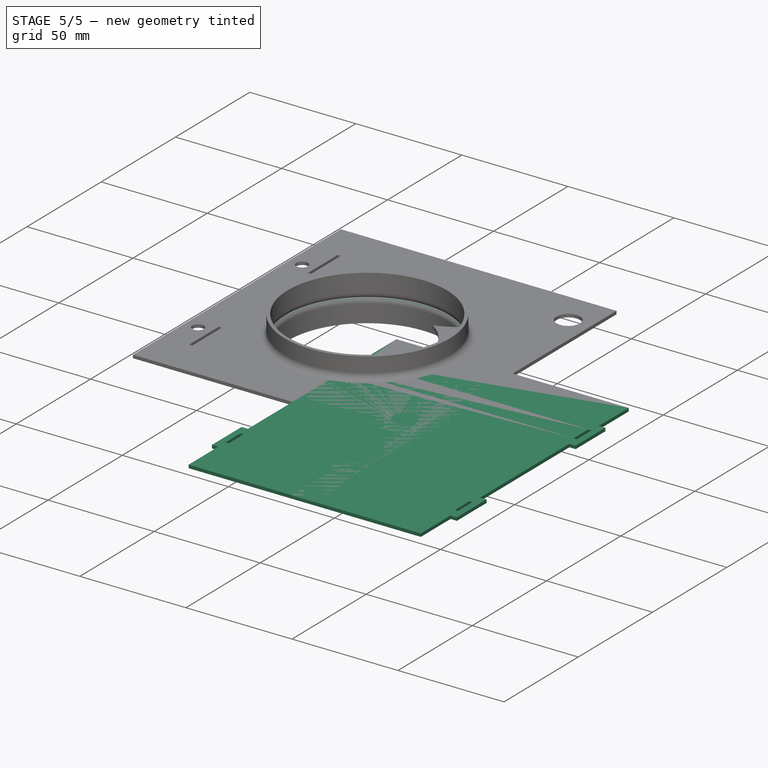
[diagram: stage 5 of 5 — iso view after this stage's code; geometry added in this stage tinted green]
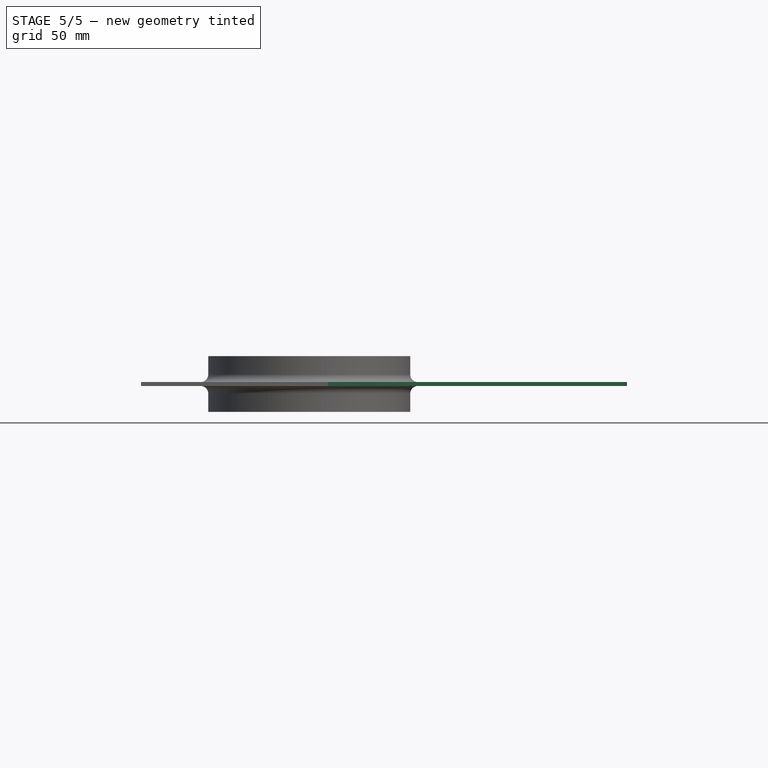
[diagram: stage 5 of 5 — front view after this stage's code; geometry added in this stage tinted green]
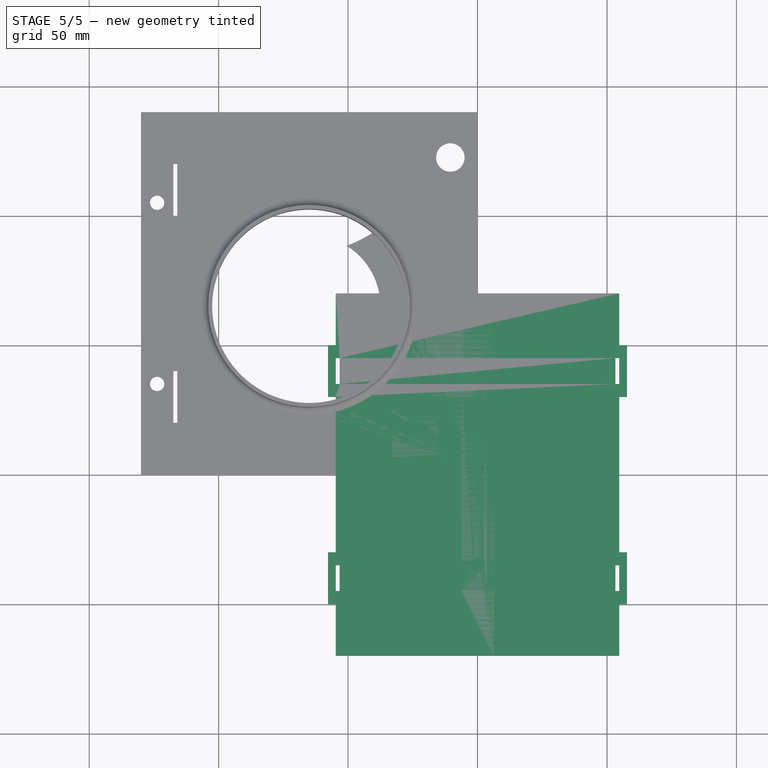
[diagram: stage 5 of 5 — top view after this stage's code; geometry added in this stage tinted green]
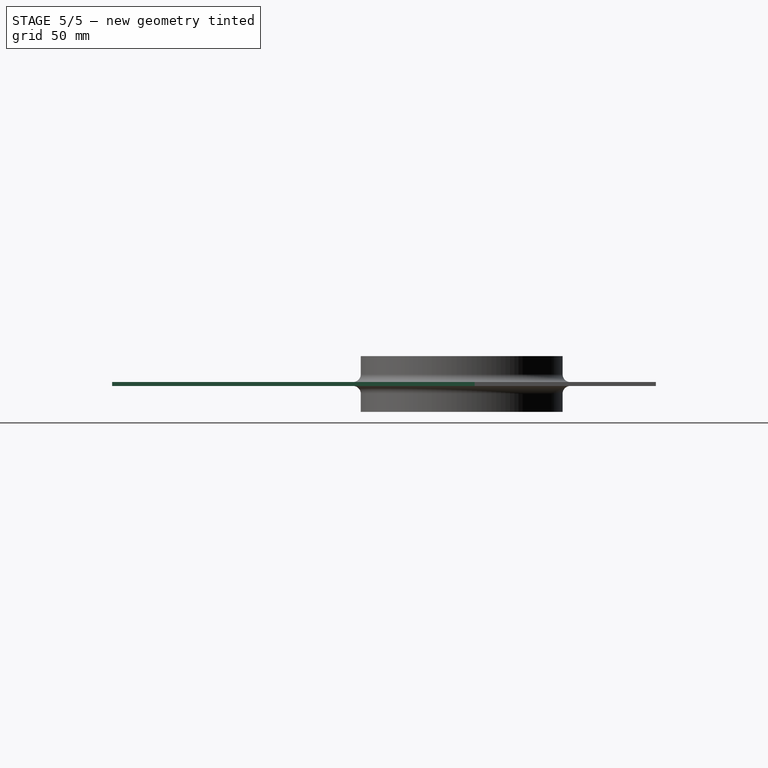
[diagram: stage 5 of 5 — right view after this stage's code; geometry added in this stage tinted green]
FEATURE [PartDesign::Fillet] Fillet001
  Base = -> Fillet [Edge36]
  BaseFeature = -> Fillet
  Radius = 3
  SupportTransform = false
FEATURE [Sketcher::SketchObject] Sketch007
  ExternalGeometry = -> [Fillet001]
  FullyConstrained = true
  MapMode = 5
  Placement = pos=(0,0,1.5) rot=(0,0,1;0rad)
  Support = -> [Fillet001]
  expr: Constraints[33] = dd.ddNotchHeight
  expr: Constraints[19] = dd.ddGrosorPlaca
  expr: Constraints[18] = dd.ddNotchHeight
  sketch-geometry (14):
    g0: LineSegment StartX=-117.5 StartY=120 StartZ=0 EndX=-116 EndY=120 EndZ=0
    g1: LineSegment StartX=-116 StartY=120 StartZ=0 EndX=-116 EndY=100 EndZ=0
    g2: LineSegment StartX=-116 StartY=100 StartZ=0 EndX=-117.5 EndY=100 EndZ=0
    g3: LineSegment StartX=-117.5 StartY=100 StartZ=0 EndX=-117.5 EndY=120 EndZ=0
    g4: LineSegment StartX=-116 StartY=40 StartZ=0 EndX=-117.5 EndY=40 EndZ=0
    g5: LineSegment StartX=-117.5 StartY=40 StartZ=0 EndX=-117.5 EndY=20 EndZ=0
    g6: LineSegment StartX=-117.5 StartY=20 StartZ=0 EndX=-116 EndY=20 EndZ=0
    g7: LineSegment StartX=-116 StartY=20 StartZ=0 EndX=-116 EndY=40 EndZ=0
    g8: GeomPoint X=-116 Y=110 Z=0
    g9: GeomPoint X=-116 Y=30 Z=0
    g10: LineSegment StartX=-65 StartY=65 StartZ=0 EndX=-116 EndY=65 EndZ=0
    g11: GeomPoint X=-130 Y=70 Z=0
    g12: GeomPoint X=-130 Y=0 Z=0
    g13: LineSegment StartX=-130 StartY=70 StartZ=0 EndX=0 EndY=70 EndZ=0
  constraints (34):
    c: Coincident(g0,g1)
    c: Coincident(g1,g2)
    c: Coincident(g2,g3)
    c: Coincident(g3,g0)
    c: Horizontal(g0)
    c: Horizontal(g2)
    c: Vertical(g1)
    c: Vertical(g3)
    c: Coincident(g4,g5)
    c: Coincident(g5,g6)
    c: Coincident(g6,g7)
    c: Coincident(g7,g4)
    c: Horizontal(g4)
    c: Horizontal(g6)
    c: Vertical(g5)
    c: Vertical(g7)
    c: Equal(g4,g2)
    c: Equal(g1,g5)
    c: DistanceY(g3,g3) = 20
    c: DistanceX(g0,g0) = 1.5
    c: Symmetric(g0,g1,g8)
    c: Symmetric(g4,g6,g9)
    c: Vertical(g4,g2)
    c: Coincident(g10,g-5)
    c: Horizontal(g10)
    c: Vertical(g10,g1)
    c: DistanceX(g10,g10) = 51
    c: Vertical(g11,g-6)
    c: PointOnObject(g12,g-1)
    c: Symmetric(g-6,g12,g11)
    c: Coincident(g13,g11)
    c: PointOnObject(g13,g-2)
    c: Symmetric(g4,g1,g13)
    c: DistanceY(g12,g5) = 20
FEATURE [PartDesign::Pocket] Pocket001
  BaseFeature = -> Fillet001
  Length = 5
  Length2 = 5
  Profile = -> Sketch007
  Type = 2
FEATURE [Sketcher::SketchObject] Sketch008
  FullyConstrained = true
  MapMode = 5
  Support = -> [XY_Plane005]
  expr: Constraints[99] = dd.ddGrosorPlaca
  expr: Constraints[60] = dd.ddNotchHeight
  expr: Constraints[42] = dd.ddNotchHeight
  expr: Constraints[55] = 1.5 * 2 * (6 * 3 * 2 + 0.5)
  expr: Constraints[41] = dd.ddAlturaPlaca
  expr: Constraints[40] = dd.ddGrosorPlaca * 2
  expr: Constraints[100] = dd.ddNotchHeight / 2
  sketch-geometry (39):
    g0: LineSegment StartX=-54.75 StartY=70 StartZ=0 EndX=54.75 EndY=70 EndZ=0
    g1: LineSegment StartX=54.75 StartY=70 StartZ=0 EndX=54.75 EndY=50 EndZ=0
    g2: LineSegment StartX=54.75 StartY=50 StartZ=0 EndX=57.75 EndY=50 EndZ=0
    g3: LineSegment StartX=57.75 StartY=50 StartZ=0 EndX=57.75 EndY=30 EndZ=0
    g4: LineSegment StartX=57.75 StartY=30 StartZ=0 EndX=54.75 EndY=30 EndZ=0
    g5: LineSegment StartX=54.75 StartY=30 StartZ=0 EndX=54.75 EndY=-30 EndZ=0
    g6: LineSegment StartX=54.75 StartY=-30 StartZ=0 EndX=57.75 EndY=-30 EndZ=0
    g7: LineSegment StartX=57.75 StartY=-30 StartZ=0 EndX=57.75 EndY=-50 EndZ=0
    g8: LineSegment StartX=57.75 StartY=-50 StartZ=0 EndX=54.75 EndY=-50 EndZ=0
    g9: LineSegment StartX=54.75 StartY=-50 StartZ=0 EndX=54.75 EndY=-70 EndZ=0
    g10: LineSegment StartX=54.75 StartY=-70 StartZ=0 EndX=-54.75 EndY=-70 EndZ=0
    g11: LineSegment StartX=-54.75 StartY=-70 StartZ=0 EndX=-54.75 EndY=-50 EndZ=0
    g12: LineSegment StartX=-54.75 StartY=-50 StartZ=0 EndX=-57.75 EndY=-50 EndZ=0
    g13: LineSegment StartX=-57.75 StartY=-50 StartZ=0 EndX=-57.75 EndY=-30 EndZ=0
    g14: LineSegment StartX=-57.75 StartY=-30 StartZ=0 EndX=-54.75 EndY=-30 EndZ=0
    g15: LineSegment StartX=-54.75 StartY=-30 StartZ=0 EndX=-54.75 EndY=30 EndZ=0
    g16: LineSegment StartX=-54.75 StartY=30 StartZ=0 EndX=-57.75 EndY=30 EndZ=0
    g17: LineSegment StartX=-57.75 StartY=30 StartZ=0 EndX=-57.75 EndY=50 EndZ=0
    g18: LineSegment StartX=-57.75 StartY=50 StartZ=0 EndX=-54.75 EndY=50 EndZ=0
    g19: LineSegment StartX=-54.75 StartY=50 StartZ=0 EndX=-54.75 EndY=70 EndZ=0
    g20: GeomPoint X=-57.75 Y=40 Z=0
    g21: GeomPoint X=-57.75 Y=-40 Z=0
    g22: LineSegment StartX=-54.75 StartY=45 StartZ=0 EndX=-53.25 EndY=45 EndZ=0
    g23: LineSegment StartX=-53.25 StartY=45 StartZ=0 EndX=-53.25 EndY=35 EndZ=0
    g24: LineSegment StartX=-53.25 StartY=35 StartZ=0 EndX=-54.75 EndY=35 EndZ=0
    g25: LineSegment StartX=-54.75 StartY=35 StartZ=0 EndX=-54.75 EndY=45 EndZ=0
    g26: LineSegment StartX=53.25 StartY=45 StartZ=0 EndX=54.75 EndY=45 EndZ=0
    g27: LineSegment StartX=54.75 StartY=45 StartZ=0 EndX=54.75 EndY=35 EndZ=0
    g28: LineSegment StartX=54.75 StartY=35 StartZ=0 EndX=53.25 EndY=35 EndZ=0
    g29: LineSegment StartX=53.25 StartY=35 StartZ=0 EndX=53.25 EndY=45 EndZ=0
    g30: LineSegment StartX=53.25 StartY=-35 StartZ=0 EndX=54.75 EndY=-35 EndZ=0
    g31: LineSegment StartX=54.75 StartY=-35 StartZ=0 EndX=54.75 EndY=-45 EndZ=0
    g32: LineSegment StartX=54.75 StartY=-45 StartZ=0 EndX=53.25 EndY=-45 EndZ=0
    g33: LineSegment StartX=53.25 StartY=-45 StartZ=0 EndX=53.25 EndY=-35 EndZ=0
    g34: LineSegment StartX=-54.75 StartY=-35 StartZ=0 EndX=-53.25 EndY=-35 EndZ=0
    g35: LineSegment StartX=-53.25 StartY=-35 StartZ=0 EndX=-53.25 EndY=-45 EndZ=0
    g36: LineSegment StartX=-53.25 StartY=-45 StartZ=0 EndX=-54.75 EndY=-45 EndZ=0
    g37: LineSegment StartX=-54.75 StartY=-45 StartZ=0 EndX=-54.75 EndY=-35 EndZ=0
    g38: GeomPoint X=-54.75 Y=40 Z=0
  constraints (109):
    c: Horizontal(g0)
    c: Coincident(g0,g1)
    c: Vertical(g1)
    c: Coincident(g1,g2)
    c: Coincident(g2,g3)
    c: Vertical(g3)
    c: Coincident(g3,g4)
    c: Vertical(g5)
    c: Coincident(g6,g7)
    c: Vertical(g7)
    c: Coincident(g7,g8)
    c: Horizontal(g8)
    c: Coincident(g8,g9)
    c: Vertical(g9)
    c: Coincident(g9,g10)
    c: Horizontal(g10)
    c: Coincident(g10,g11)
    c: Vertical(g11)
    c: Coincident(g11,g12)
    c: Horizontal(g12)
    c: Coincident(g12,g13)
    c: Vertical(g13)
    c: Coincident(g13,g14)
    c: Horizontal(g14)
    c: Coincident(g14,g15)
    c: Vertical(g15)
    c: Coincident(g16,g17)
    c: Vertical(g17)
    c: Coincident(g17,g18)
    c: Horizontal(g18)
    c: Coincident(g18,g19)
    c: Vertical(g19)
    c: Coincident(g0,g19)
    c: Equal(g0,g10)
    c: Equal(g7,g13)
    c: Equal(g13,g3)
    c: Horizontal(g2)
    c: Equal(g2,g4)
    c: Equal(g16,g18)
    c: Equal(g3,g17)
    c: DistanceX(g2,g2) = 3
    c: DistanceY(g9,g0) = 140
    c: DistanceY(g17,g17) = 20
    c: Symmetric(g9,g0,g-1)
    c: Symmetric(g13,g12,g21)
    c: Symmetric(g17,g16,g20)
    c: Horizontal(g16)
    c: Coincident(g15,g16)
    c: Vertical(g12,g14)
    c: Coincident(g4,g5)
    c: Vertical(g1,g4)
    c: Horizontal(g6)
    c: Coincident(g5,g6)
    c: Equal(g4,g6)
    c: Equal(g6,g14)
    c: DistanceX(g0,g0) = 109.5
    c: Equal(g11,g9)
    c: Equal(g19,g1)
    c: Vertical(g16,g13)
    c: Equal(g19,g11)
    c: DistanceY(g11,g11) = 20
    c: Coincident(g22,g23)
    c: Coincident(g23,g24)
    c: Coincident(g24,g25)
    c: Coincident(g25,g22)
    c: Horizontal(g22)
    c: Horizontal(g24)
    c: Vertical(g23)
    c: Vertical(g25)
    c: Coincident(g26,g27)
    c: Coincident(g27,g28)
    c: Coincident(g28,g29)
    c: Coincident(g29,g26)
    c: Horizontal(g26)
    c: Horizontal(g28)
    c: Vertical(g27)
    c: Vertical(g29)
    c: Coincident(g30,g31)
    c: Coincident(g31,g32)
    c: Coincident(g32,g33)
    c: Coincident(g33,g30)
    c: Horizontal(g30)
    c: Horizontal(g32)
    c: Vertical(g31)
    c: Vertical(g33)
    c: Coincident(g34,g35)
    c: Coincident(g35,g36)
    c: Coincident(g36,g37)
    c: Coincident(g37,g34)
    c: Horizontal(g34)
    c: Horizontal(g36)
    c: Vertical(g35)
    c: Vertical(g37)
    c: Equal(g30,g28)
    c: Equal(g28,g34)
    c: Equal(g34,g24)
    c: Equal(g23,g35)
    c: Equal(g35,g33)
    c: Equal(g33,g29)
    c: DistanceX(g36,g36) = 1.5
    c: DistanceY(g35,g35) = 10
    c: Horizontal(g30,g34)
    c: Horizontal(g23,g28)
    c: Vertical(g28,g30)
    c: Vertical(g34,g23)
    c: Symmetric(g23,g30,g-1)
    c: Vertical(g30,g5)
    c: Symmetric(g22,g24,g38)
    c: Horizontal(g20,g38)
FEATURE [PartDesign::Pad] Pad007
  Direction = (0,0,1)
  Length = 1.5
  Length2 = 10
  Profile = -> Sketch008
  Type = 0
  expr: Length = dd.ddGrosorPlaca
FEATURE [Sketcher::SketchObject] Sketch011
  ExternalGeometry = -> [Pocket001]
  FullyConstrained = true
  MapMode = 5
  Placement = pos=(0,0,1.5) rot=(0,0,1;0rad)
  Support = -> [Pocket001]
  sketch-geometry (8):
    g0: Circle CenterX=-123.75 CenterY=105 CenterZ=0 NormalX=0 NormalY=0 NormalZ=1 AngleXU=0 Radius=5
    g1: Circle CenterX=-123.75 CenterY=35 CenterZ=0 NormalX=0 NormalY=0 NormalZ=1 AngleXU=0 Radius=5
    g2: GeomPoint X=-130 Y=0 Z=0
    g3: GeomPoint X=-117.5 Y=0 Z=0
    g4: GeomPoint X=-123.75 Y=0 Z=0
    g5: GeomPoint X=-130 Y=70 Z=0
    g6: LineSegment StartX=-130 StartY=70 StartZ=0 EndX=0 EndY=70 EndZ=0
    g7: GeomPoint X=-123.75 Y=70 Z=0
  constraints (14):
    c: Vertical(g1,g0)
    c: Equal(g0,g1)
    c: Diameter(g0) = 10
    c: PointOnObject(g3,g-1)
    c: Vertical(g-4,g3)
    c: Symmetric(g2,g3,g4)
    c: Coincident(g2,g-5)
    c: Vertical(g4,g1)
    c: Symmetric(g-5,g2,g5)
    c: Coincident(g6,g5)
    c: PointOnObject(g6,g-2)
    c: Symmetric(g1,g0,g6)
    c: PointOnObject(g7,g6)
    c: Symmetric(g4,g7,g1)
FEATURE [PartDesign::Hole] Hole001
  BaseFeature = -> Pocket001
  Depth = 386.619
  DepthType = 1
  Diameter = 5.5
  DrillForDepth = false
  DrillPoint = 1
  DrillPointAngle = 118
  HoleCutCountersinkAngle = 90
  HoleCutCustomValues = false
  HoleCutDepth = 0
  HoleCutDiameter = 6.1
  HoleCutType = 0
  ModelActualThread = false
  Profile = -> Sketch011
  Tapered = false
  TaperedAngle = 90
  ThreadAngle = 0
  ThreadClass = 0
  ThreadCutOffInner = 0
  ThreadCutOffOuter = 0
  ThreadDirection = 0
  ThreadFit = 0
  ThreadPitch = 0
  ThreadSize = 13
  ThreadType = 1
  Threaded = false
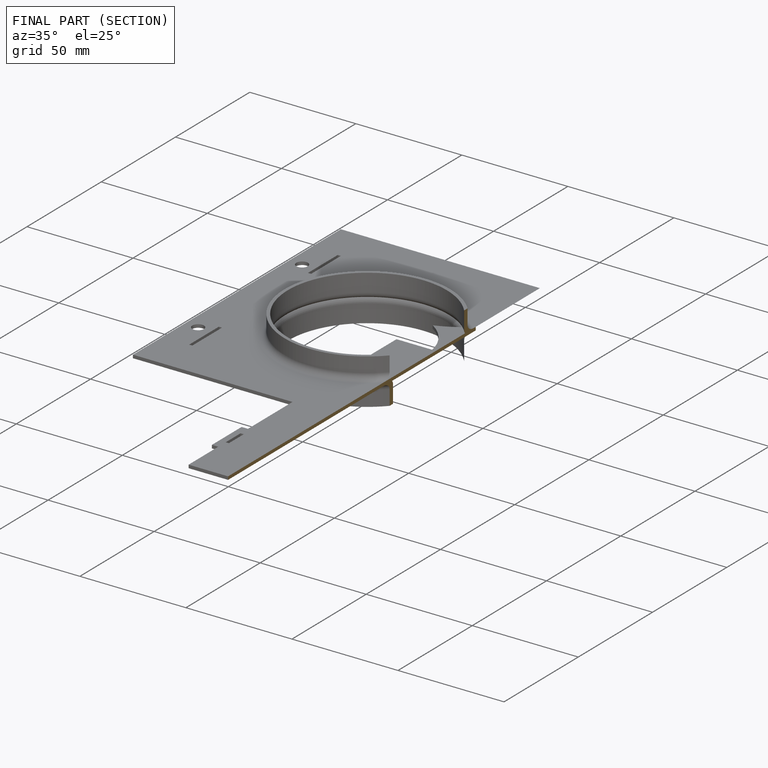
[diagram: finished part — half-section view (interior)]
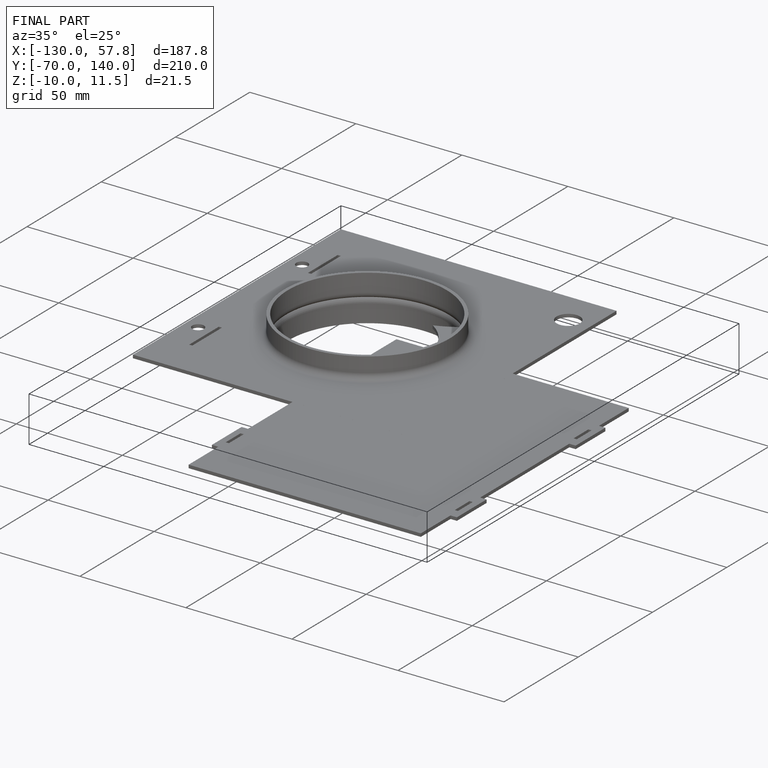
[diagram: finished part — iso view with bounding-box wireframe]
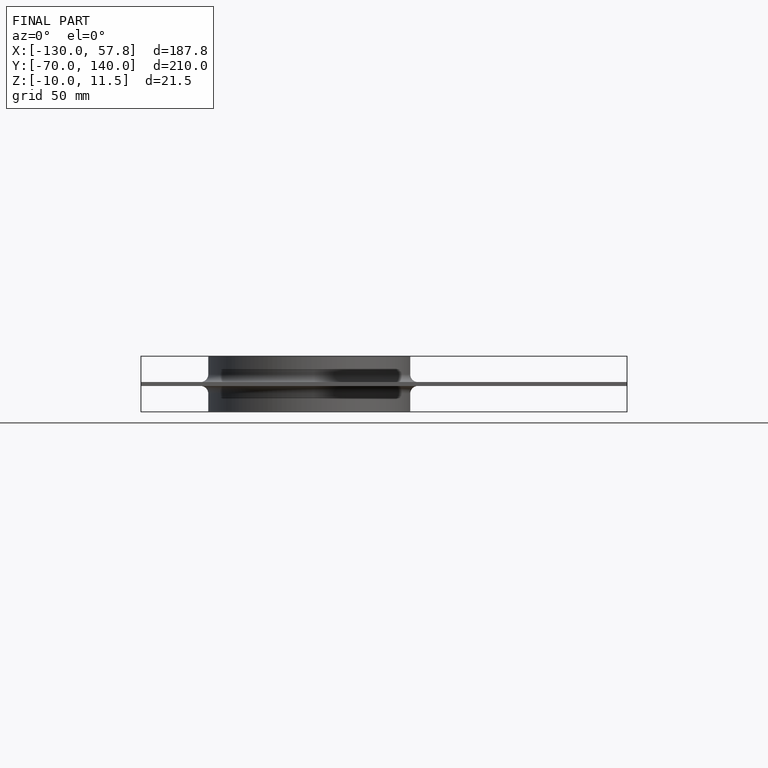
[diagram: finished part — front view with bounding-box wireframe]
